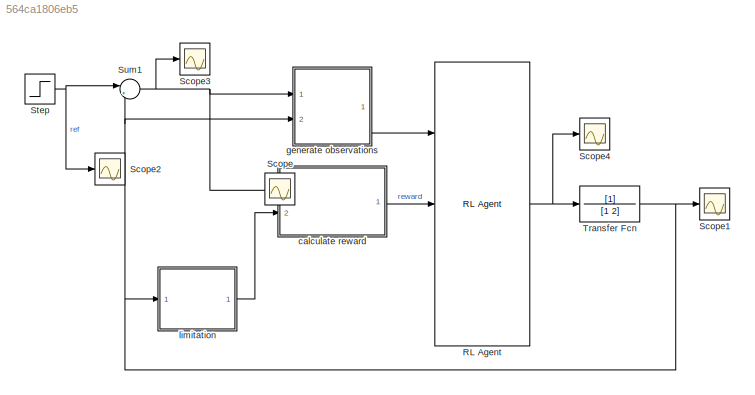
MODEL slx_564ca1806eb5
KIND model
CONFIG AbsTol = auto
CONFIG EnableMultiTasking = on
CONFIG FixedStep = auto
CONFIG MaxStep = auto
CONFIG MinStep = auto
CONFIG RelTol = 1e-3
CONFIG SampleTimeConstraint = Unconstrained
CONFIG Solver = ode45
CONFIG SolverName = ode45
CONFIG StartTime = 0.0
CONFIG StopTime = 200.0
BLOCK [Reference] RL Agent  REF=rllib/RL Agent
  Ports = [3, 1]
  SourceBlock = rllib/RL Agent
  SourceProductBaseCode = RL
  SourceProductName = Reinforcement Learning Toolbox
  SourceType = RL Agent
BLOCK [Scope] Scope
  Floating = off
  IOType = viewer
  NumInputPorts = 1
  Ports = []
  ScopeSpecificationString = Simulink.scopes.TimeScopeBlockCfg('CurrentConfiguration', extmgr.ConfigurationSet(extmgr.Configuration('Core','General UI',true),extmgr.Configuration('Core','Source UI',true),extmgr.Configuration('Sources','WiredSimulink',true),extmgr.Configuration('Visuals','Time Domain',true,'SerializedDisplays',{struct('MinYLimReal','0.84724','MaxYLimReal','22.37482','YLabelReal','','MinYLimMag','0.84724','MaxY...<+2655ch>
BLOCK [Scope] Scope1
  Floating = off
  NumInputPorts = 1
  Ports = [1]
  ScopeSpecificationString = Simulink.scopes.TimeScopeBlockCfg('CurrentConfiguration', extmgr.ConfigurationSet(extmgr.Configuration('Core','General UI',true),extmgr.Configuration('Core','Source UI',true),extmgr.Configuration('Sources','WiredSimulink',true,'DataLoggingVariableName','ScopeData1'),extmgr.Configuration('Visuals','Time Domain',true,'SerializedDisplays',{struct('MinYLimReal','-0.0242','MaxYLimReal','0.2178','YLabel...<+1436ch>
BLOCK [Scope] Scope2
  Floating = off
  NumInputPorts = 1
  Ports = [1]
  ScopeSpecificationString = Simulink.scopes.TimeScopeBlockCfg('CurrentConfiguration', extmgr.ConfigurationSet(extmgr.Configuration('Core','General UI',true),extmgr.Configuration('Core','Source UI',true),extmgr.Configuration('Sources','WiredSimulink',true,'DataLoggingVariableName','ScopeData2'),extmgr.Configuration('Visuals','Time Domain',true,'SerializedDisplays',{struct('MinYLimReal','0.1','MaxYLimReal','0.3','YLabelReal','...<+1405ch>
BLOCK [Scope] Scope3
  Floating = off
  NumInputPorts = 1
  Ports = [1]
  ScopeSpecificationString = Simulink.scopes.TimeScopeBlockCfg('CurrentConfiguration', extmgr.ConfigurationSet(extmgr.Configuration('Core','General UI',true),extmgr.Configuration('Core','Source UI',true),extmgr.Configuration('Sources','WiredSimulink',true,'DataLoggingVariableName','ScopeData3'),extmgr.Configuration('Visuals','Time Domain',true,'SerializedDisplays',{struct('MinYLimReal','-0.0178','MaxYLimReal','0.2242','YLabel...<+1409ch>
BLOCK [Scope] Scope4
  Floating = off
  NumInputPorts = 1
  Ports = [1]
  ScopeSpecificationString = Simulink.scopes.TimeScopeBlockCfg('CurrentConfiguration', extmgr.ConfigurationSet(extmgr.Configuration('Core','General UI',true),extmgr.Configuration('Core','Source UI',true),extmgr.Configuration('Sources','WiredSimulink',true,'DataLoggingVariableName','ScopeData4'),extmgr.Configuration('Visuals','Time Domain',true,'SerializedDisplays',{struct('MinYLimReal','-0.04535','MaxYLimReal','0.43542','YLab...<+1415ch>
BLOCK [Step] Step
  After = 0.2
  SampleTime = 0
  Time = 0
BLOCK [Sum] Sum1
  IconShape = round
  InputSameDT = off
  Inputs = |+-
  OutDataTypeStr = Inherit: Inherit via internal rule
  Ports = [2, 1]
BLOCK [TransferFcn] Transfer Fcn
  Denominator = [1 2]
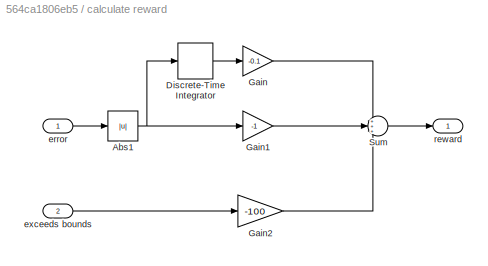
BLOCK [SubSystem] calculate reward
  Ports = [2, 1]
  RequestExecContextInheritance = off
BLOCK [Abs] calculate reward/Abs1
  SaturateOnIntegerOverflow = off
BLOCK [DiscreteIntegrator] calculate reward/Discrete-Time Integrator
  ICPrevOutput = DiscIntNeverNeededParam
  ICPrevScaledInput = DiscIntNeverNeededParam
  InitialConditionSetting = Auto
  Ports = [1, 1]
  SampleTime = Ts
BLOCK [Gain] calculate reward/Gain
  Gain = -0.1
  OutDataTypeStr = Inherit: Inherit via internal rule
  ParamDataTypeStr = Inherit: Inherit via internal rule
  SaturateOnIntegerOverflow = off
BLOCK [Gain] calculate reward/Gain1
  Gain = -1
  OutDataTypeStr = Inherit: Inherit via internal rule
  ParamDataTypeStr = Inherit: Inherit via internal rule
  SaturateOnIntegerOverflow = off
BLOCK [Gain] calculate reward/Gain2
  Gain = -100
  OutDataTypeStr = Inherit: Inherit via internal rule
  ParamDataTypeStr = Inherit: Inherit via internal rule
  SaturateOnIntegerOverflow = off
BLOCK [Sum] calculate reward/Sum
  IconShape = round
  InputSameDT = off
  Inputs = +++
  OutDataTypeStr = double
  Ports = [3, 1]
  SaturateOnIntegerOverflow = off
BLOCK [Inport] calculate reward/error
  IconDisplay = Port number
BLOCK [Inport] calculate reward/exceeds bounds
  IconDisplay = Port number
  Port = 2
BLOCK [Outport] calculate reward/reward
  IconDisplay = Port number
  VectorParamsAs1DForOutWhenUnconnected = off
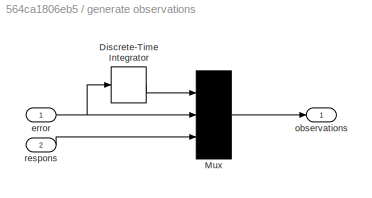
BLOCK [SubSystem] generate observations
  Ports = [2, 1]
  RequestExecContextInheritance = off
BLOCK [DiscreteIntegrator] generate observations/Discrete-Time Integrator
  ICPrevOutput = DiscIntNeverNeededParam
  ICPrevScaledInput = DiscIntNeverNeededParam
  InitialConditionSetting = Auto
  Ports = [1, 1]
  SampleTime = Ts
BLOCK [Mux] generate observations/Mux
  DisplayOption = bar
  Inputs = 3
  Ports = [3, 1]
BLOCK [Inport] generate observations/error
  IconDisplay = Port number
BLOCK [Outport] generate observations/observations
  IconDisplay = Port number
  VectorParamsAs1DForOutWhenUnconnected = off
BLOCK [Inport] generate observations/respons
  IconDisplay = Port number
  Port = 2
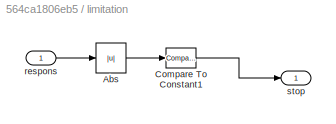
BLOCK [SubSystem] limitation
  Ports = [1, 1]
  RequestExecContextInheritance = off
BLOCK [Abs] limitation/Abs
  SaturateOnIntegerOverflow = off
BLOCK [Reference] limitation/Compare To Constant1  REF=simulink/Logic and Bit
Operations/Compare
To Constant
  Ports = [1, 1]
  SourceBlock = simulink/Logic and Bit\nOperations/Compare\nTo Constant
  SourceProductBaseCode = SL
  SourceProductName = Simulink
  SourceType = Compare To Constant
BLOCK [Inport] limitation/respons
  IconDisplay = Port number
BLOCK [Outport] limitation/stop
  IconDisplay = Port number
  VectorParamsAs1DForOutWhenUnconnected = off
NET RL Agent:1 -> Scope4:1, Transfer Fcn:1
NET Step:1 -> Scope2:1, Sum1:1
NET Sum1:1 -> Scope3:1, calculate reward:1, generate observations:1
NET Transfer Fcn:1 -> Scope1:1, Sum1:2, generate observations:2, limitation:1
NET calculate reward/Abs1:1 -> calculate reward/Discrete-Time Integrator:1, calculate reward/Gain1:1
LINE calculate reward/Discrete-Time Integrator:1 -> calculate reward/Gain:1
LINE calculate reward/Gain1:1 -> calculate reward/Sum:2
LINE calculate reward/Gain2:1 -> calculate reward/Sum:3
LINE calculate reward/Gain:1 -> calculate reward/Sum:1
LINE calculate reward/Sum:1 -> calculate reward/reward:1
LINE calculate reward/error:1 -> calculate reward/Abs1:1
LINE calculate reward/exceeds bounds:1 -> calculate reward/Gain2:1
LINE calculate reward:1 -> RL Agent:2
LINE generate observations/Discrete-Time Integrator:1 -> generate observations/Mux:1
LINE generate observations/Mux:1 -> generate observations/observations:1
NET generate observations/error:1 -> generate observations/Discrete-Time Integrator:1, generate observations/Mux:2
LINE generate observations/respons:1 -> generate observations/Mux:3
LINE generate observations:1 -> RL Agent:1
LINE limitation/Abs:1 -> limitation/Compare To Constant1:1
LINE limitation/Compare To Constant1:1 -> limitation/stop:1
LINE limitation/respons:1 -> limitation/Abs:1
LINE limitation:1 -> calculate reward:2
note: NET lines group one-source signal fan-out (src -> all destinations, sorted); 1:1 wires keep LINE
